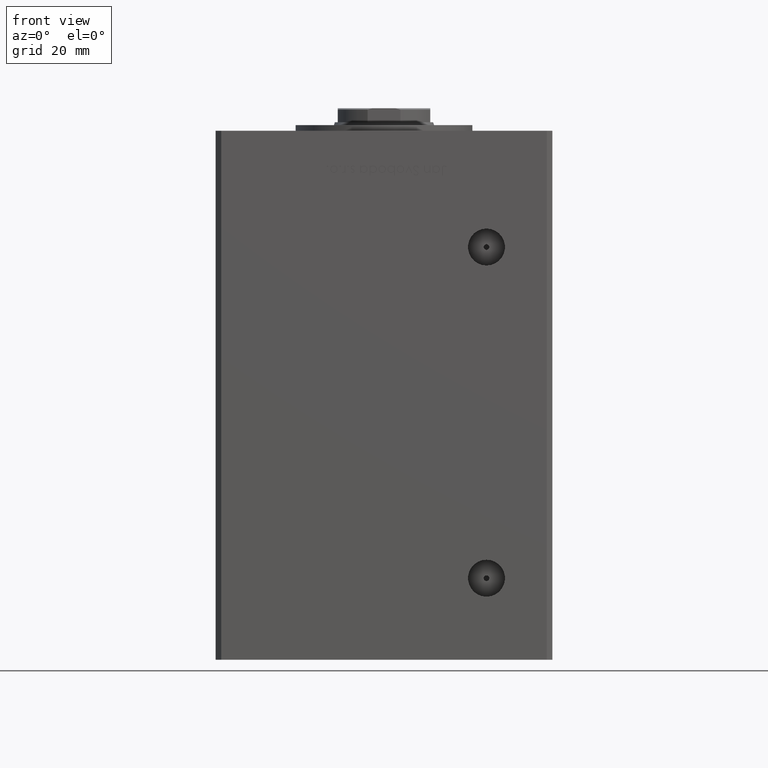
[diagram: clean part render]
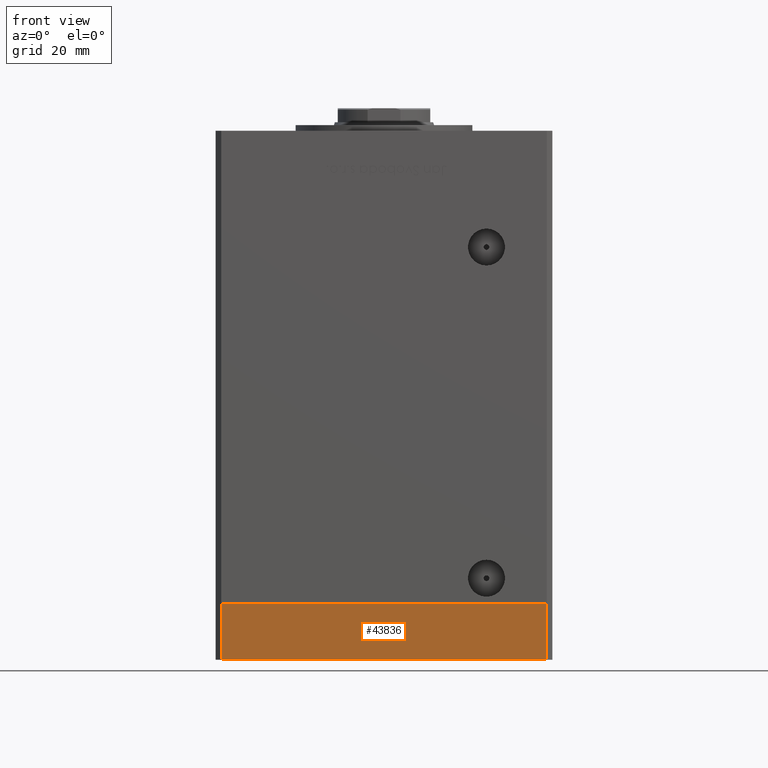
[diagram: same view with one face highlighted and labeled with its STEP entity id]
A machine part, front view. The second image highlights one B-rep face of the part: STEP entity #43836.
In plain terms, the highlighted planar face has unit normal (-0, -1, -0).
Its self-contained STEP definition (entity closure, byte-faithful):
#404 = CARTESIAN_POINT ( 'NONE',  ( -57.99999999999997868, -51.00000000000001421, 0.000000000000000000 ) ) ;
#2213 = LINE ( 'NONE', #32698, #3782 ) ;
#2407 = PLANE ( 'NONE',  #46753 ) ;
#2779 = EDGE_CURVE ( 'NONE', #53382, #33450, #22311, .T. ) ;
#3339 = LINE ( 'NONE', #33283, #9540 ) ;
#3782 = VECTOR ( 'NONE', #19141, 1000.000000000000000 ) ;
#6557 = DIRECTION ( 'NONE',  ( 1.000000000000000000, 1.196361017915039486E-16, 0.000000000000000000 ) ) ;
#6760 = LINE ( 'NONE', #48671, #17460 ) ;
#9002 = DIRECTION ( 'NONE',  ( 0.000000000000000000, 0.000000000000000000, 1.000000000000000000 ) ) ;
#9540 = VECTOR ( 'NONE', #50203, 1000.000000000000000 ) ;
#13346 = CARTESIAN_POINT ( 'NONE',  ( -57.99999999999997868, -51.00000000000001421, -20.00000000000000000 ) ) ;
#14892 = ORIENTED_EDGE ( 'NONE', *, *, #27188, .T. ) ;
#15565 = CARTESIAN_POINT ( 'NONE',  ( 58.00000000000000000, -51.00000000000000711, 0.000000000000000000 ) ) ;
#17460 = VECTOR ( 'NONE', #49195, 1000.000000000000000 ) ;
#18822 = ORIENTED_EDGE ( 'NONE', *, *, #41439, .F. ) ;
#19063 = DIRECTION ( 'NONE',  ( 1.196361017915039486E-16, -1.000000000000000000, 0.000000000000000000 ) ) ;
#19141 = DIRECTION ( 'NONE',  ( 1.000000000000000000, 1.196361017915039486E-16, 0.000000000000000000 ) ) ;
#22311 = LINE ( 'NONE', #47003, #27035 ) ;
#25291 = CARTESIAN_POINT ( 'NONE',  ( 58.00000000000000000, -51.00000000000000711, -20.00000000000000000 ) ) ;
#26557 = VERTEX_POINT ( 'NONE', #36505 ) ;
#27035 = VECTOR ( 'NONE', #9002, 1000.000000000000000 ) ;
#27188 = EDGE_CURVE ( 'NONE', #26557, #53382, #2213, .T. ) ;
#29580 = EDGE_LOOP ( 'NONE', ( #18822, #43895, #14892, #54182 ) ) ;
#32698 = CARTESIAN_POINT ( 'NONE',  ( -57.99999999999997868, -51.00000000000001421, -20.00000000000000000 ) ) ;
#33283 = CARTESIAN_POINT ( 'NONE',  ( -57.99999999999997868, -51.00000000000001421, -20.00000000000000000 ) ) ;
#33450 = VERTEX_POINT ( 'NONE', #15565 ) ;
#35614 = VERTEX_POINT ( 'NONE', #404 ) ;
#36505 = CARTESIAN_POINT ( 'NONE',  ( -57.99999999999997868, -51.00000000000001421, -20.00000000000000000 ) ) ;
#41439 = EDGE_CURVE ( 'NONE', #35614, #33450, #6760, .T. ) ;
#43836 = ADVANCED_FACE ( 'NONE', ( #52337 ), #2407, .T. ) ;
#43895 = ORIENTED_EDGE ( 'NONE', *, *, #47795, .F. ) ;
#46753 = AXIS2_PLACEMENT_3D ( 'NONE', #13346, #19063, #6557 ) ;
#47003 = CARTESIAN_POINT ( 'NONE',  ( 58.00000000000000000, -51.00000000000000711, -20.00000000000000000 ) ) ;
#47795 = EDGE_CURVE ( 'NONE', #26557, #35614, #3339, .T. ) ;
#48671 = CARTESIAN_POINT ( 'NONE',  ( -57.99999999999997868, -51.00000000000001421, 0.000000000000000000 ) ) ;
#49195 = DIRECTION ( 'NONE',  ( 1.000000000000000000, 1.196361017915039486E-16, 0.000000000000000000 ) ) ;
#50203 = DIRECTION ( 'NONE',  ( 0.000000000000000000, 0.000000000000000000, 1.000000000000000000 ) ) ;
#52337 = FACE_OUTER_BOUND ( 'NONE', #29580, .T. ) ;
#53382 = VERTEX_POINT ( 'NONE', #25291 ) ;
#54182 = ORIENTED_EDGE ( 'NONE', *, *, #2779, .T. ) ;